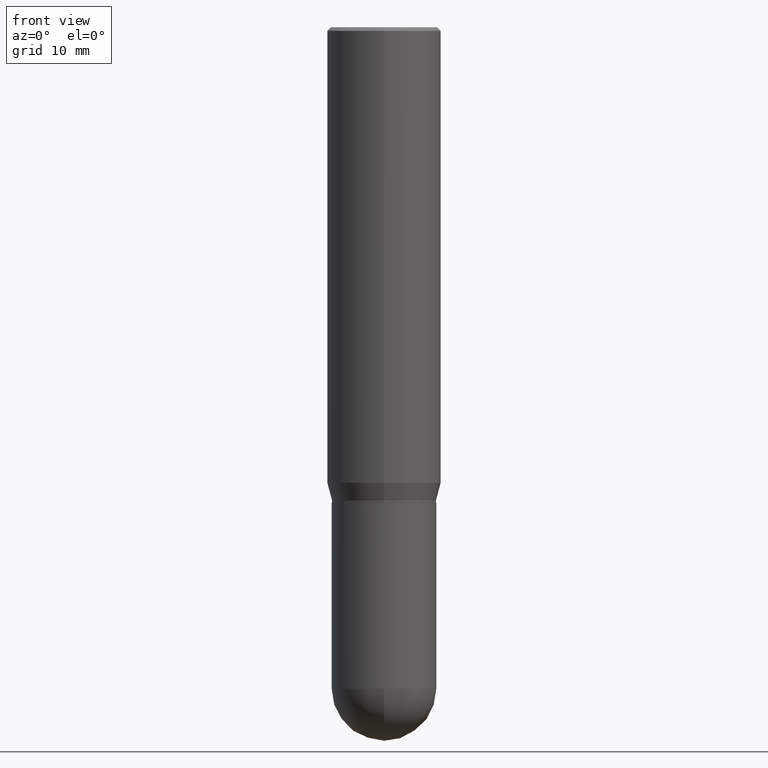
[diagram: clean part render]
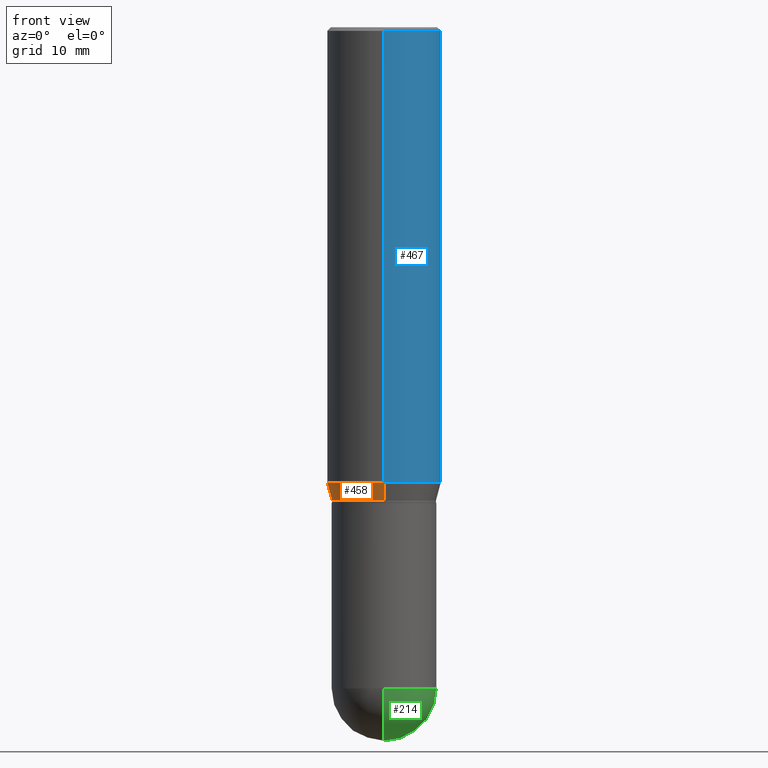
[diagram: same view with three faces highlighted in distinct colors, each labeled with its STEP entity id]
A machine part, front view with three faces highlighted in distinct colors.
Their STEP definitions:

[orange] entity #458 — the highlighted conical surface has half-angle 15 deg.
#1 = VERTEX_POINT ( 'NONE', #237 ) ;
#27 = CARTESIAN_POINT ( 'NONE',  ( 1.538680294288542061E-15, 0.2165499999999928316, -1.958500000000000796 ) ) ;
#37 = CIRCLE ( 'NONE', #310, 0.2361999999999999933 ) ;
#40 = CARTESIAN_POINT ( 'NONE',  ( -1.649375784469449785E-15, -0.2362000000000065436, -1.885165201631269660 ) ) ;
#59 = VECTOR ( 'NONE', #349, 39.37007874015748143 ) ;
#67 = AXIS2_PLACEMENT_3D ( 'NONE', #282, #146, #171 ) ;
#146 = DIRECTION ( 'NONE',  ( -2.445645617895871651E-29, 3.491228134409875712E-15, 1.000000000000000000 ) ) ;
#166 = CARTESIAN_POINT ( 'NONE',  ( -1.512160567852910730E-15, -0.2165500000000064873, -1.958499999999999019 ) ) ;
#171 = DIRECTION ( 'NONE',  ( -6.982962677686265922E-15, -1.000000000000000000, 3.784596620176773299E-15 ) ) ;
#191 = VECTOR ( 'NONE', #407, 39.37007874015748143 ) ;
#225 = EDGE_LOOP ( 'NONE', ( #268, #381, #342, #234 ) ) ;
#228 = VERTEX_POINT ( 'NONE', #329 ) ;
#234 = ORIENTED_EDGE ( 'NONE', *, *, #471, .F. ) ;
#236 = AXIS2_PLACEMENT_3D ( 'NONE', #380, #270, #272 ) ;
#237 = CARTESIAN_POINT ( 'NONE',  ( 1.678301941865402543E-15, 0.2361999999999934430, -1.885165201631271215 ) ) ;
#249 = LINE ( 'NONE', #27, #191 ) ;
#253 = EDGE_CURVE ( 'NONE', #228, #398, #402, .T. ) ;
#257 = CARTESIAN_POINT ( 'NONE',  ( -1.512160567852910730E-15, -0.2165500000000064873, -1.958499999999999019 ) ) ;
#268 = ORIENTED_EDGE ( 'NONE', *, *, #448, .F. ) ;
#270 = DIRECTION ( 'NONE',  ( -2.445645617895871651E-29, 3.491228134409875712E-15, 1.000000000000000000 ) ) ;
#272 = DIRECTION ( 'NONE',  ( -6.982962677686265922E-15, -1.000000000000000000, 3.784596620176773299E-15 ) ) ;
#281 = EDGE_CURVE ( 'NONE', #398, #408, #469, .T. ) ;
#282 = CARTESIAN_POINT ( 'NONE',  ( 4.789796942649064112E-29, -6.837570301241741551E-15, -1.958499999999999908 ) ) ;
#287 = FACE_OUTER_BOUND ( 'NONE', #225, .T. ) ;
#292 = CONICAL_SURFACE ( 'NONE', #67, 0.2165499999999996594, 0.2617993877991502405 ) ;
#310 = AXIS2_PLACEMENT_3D ( 'NONE', #482, #316, #440 ) ;
#316 = DIRECTION ( 'NONE',  ( -2.445645617895871651E-29, 3.491228134409875712E-15, 1.000000000000000000 ) ) ;
#329 = CARTESIAN_POINT ( 'NONE',  ( 1.608491118076972302E-15, 0.2165499999999928316, -1.958500000000000796 ) ) ;
#342 = ORIENTED_EDGE ( 'NONE', *, *, #281, .T. ) ;
#349 = DIRECTION ( 'NONE',  ( -1.807323732225329745E-15, -0.2588190451025181305, 0.9659258262890689783 ) ) ;
#380 = CARTESIAN_POINT ( 'NONE',  ( 4.789796942649064112E-29, -6.837570301241741551E-15, -1.958499999999999908 ) ) ;
#381 = ORIENTED_EDGE ( 'NONE', *, *, #253, .T. ) ;
#398 = VERTEX_POINT ( 'NONE', #257 ) ;
#402 = CIRCLE ( 'NONE', #236, 0.2165499999999996594 ) ;
#407 = DIRECTION ( 'NONE',  ( 1.839019923739599921E-15, 0.2588190451025249028, 0.9659258262890670910 ) ) ;
#408 = VERTEX_POINT ( 'NONE', #40 ) ;
#440 = DIRECTION ( 'NONE',  ( -6.982962677686265922E-15, -1.000000000000000000, 3.469747663417777397E-15 ) ) ;
#448 = EDGE_CURVE ( 'NONE', #228, #1, #249, .T. ) ;
#458 = ADVANCED_FACE ( 'NONE', ( #287 ), #292, .T. ) ;
#469 = LINE ( 'NONE', #166, #59 ) ;
#471 = EDGE_CURVE ( 'NONE', #1, #408, #37, .T. ) ;
#482 = CARTESIAN_POINT ( 'NONE',  ( 4.610446014379303463E-29, -6.581541789945557282E-15, -1.885165201631270548 ) ) ;

[blue] entity #467 — the highlighted cylindrical surface (partial cylindrical patch) has radius 5.9995 mm, axis along (-0, 0, 1).
#1 = VERTEX_POINT ( 'NONE', #237 ) ;
#2 = CARTESIAN_POINT ( 'NONE',  ( 3.668468426843755121E-31, -5.236842201614738281E-17, -0.01499999999999978434 ) ) ;
#22 = EDGE_CURVE ( 'NONE', #1, #56, #130, .T. ) ;
#36 = VERTEX_POINT ( 'NONE', #271 ) ;
#40 = CARTESIAN_POINT ( 'NONE',  ( -1.649375784469449785E-15, -0.2362000000000065436, -1.885165201631269660 ) ) ;
#41 = ORIENTED_EDGE ( 'NONE', *, *, #22, .T. ) ;
#48 = DIRECTION ( 'NONE',  ( -2.445645617895871651E-29, 3.491228134409875712E-15, 1.000000000000000000 ) ) ;
#51 = DIRECTION ( 'NONE',  ( -2.445645617895871651E-29, 3.491228134409875712E-15, 1.000000000000000000 ) ) ;
#56 = VERTEX_POINT ( 'NONE', #332 ) ;
#62 = ORIENTED_EDGE ( 'NONE', *, *, #250, .F. ) ;
#64 = CARTESIAN_POINT ( 'NONE',  ( 0.000000000000000000, 0.000000000000000000, 0.000000000000000000 ) ) ;
#86 = DIRECTION ( 'NONE',  ( -6.982962677686265922E-15, -1.000000000000000000, 3.487819265831411744E-15 ) ) ;
#93 = CARTESIAN_POINT ( 'NONE',  ( -1.649375784469495934E-15, -0.2361999999999999933, 8.246280853476126431E-16 ) ) ;
#96 = CARTESIAN_POINT ( 'NONE',  ( 1.678301941865356394E-15, 0.2361999999999999933, -8.246280853476126431E-16 ) ) ;
#110 = AXIS2_PLACEMENT_3D ( 'NONE', #2, #200, #86 ) ;
#125 = LINE ( 'NONE', #93, #273 ) ;
#130 = LINE ( 'NONE', #96, #426 ) ;
#175 = ORIENTED_EDGE ( 'NONE', *, *, #371, .T. ) ;
#200 = DIRECTION ( 'NONE',  ( -2.445645617895871651E-29, 3.491228134409875712E-15, 1.000000000000000000 ) ) ;
#219 = CIRCLE ( 'NONE', #110, 0.2361999999999999933 ) ;
#235 = CARTESIAN_POINT ( 'NONE',  ( 4.610446014379303463E-29, -6.581541789945557282E-15, -1.885165201631270548 ) ) ;
#237 = CARTESIAN_POINT ( 'NONE',  ( 1.678301941865402543E-15, 0.2361999999999934430, -1.885165201631271215 ) ) ;
#239 = EDGE_CURVE ( 'NONE', #36, #56, #219, .T. ) ;
#250 = EDGE_CURVE ( 'NONE', #408, #36, #125, .T. ) ;
#267 = DIRECTION ( 'NONE',  ( -2.445645617895871651E-29, 3.491228134409875712E-15, 1.000000000000000000 ) ) ;
#271 = CARTESIAN_POINT ( 'NONE',  ( -1.649375784469495539E-15, -0.2362000000000000766, -0.01499999999999896035 ) ) ;
#273 = VECTOR ( 'NONE', #267, 39.37007874015748143 ) ;
#276 = DIRECTION ( 'NONE',  ( -2.445645617895871651E-29, 3.491228134409875712E-15, 1.000000000000000000 ) ) ;
#280 = ORIENTED_EDGE ( 'NONE', *, *, #239, .F. ) ;
#324 = CYLINDRICAL_SURFACE ( 'NONE', #510, 0.2361999999999999933 ) ;
#332 = CARTESIAN_POINT ( 'NONE',  ( 1.678301941865403134E-15, 0.2361999999999999655, -0.01500000000000060833 ) ) ;
#345 = AXIS2_PLACEMENT_3D ( 'NONE', #235, #51, #428 ) ;
#371 = EDGE_CURVE ( 'NONE', #408, #1, #473, .T. ) ;
#401 = DIRECTION ( 'NONE',  ( -6.982962677686265922E-15, -1.000000000000000000, 3.491228134409875712E-15 ) ) ;
#408 = VERTEX_POINT ( 'NONE', #40 ) ;
#426 = VECTOR ( 'NONE', #48, 39.37007874015748143 ) ;
#428 = DIRECTION ( 'NONE',  ( -6.982962677686265922E-15, -1.000000000000000000, 3.469747663417777397E-15 ) ) ;
#467 = ADVANCED_FACE ( 'NONE', ( #485 ), #324, .T. ) ;
#473 = CIRCLE ( 'NONE', #345, 0.2361999999999999933 ) ;
#485 = FACE_OUTER_BOUND ( 'NONE', #499, .T. ) ;
#499 = EDGE_LOOP ( 'NONE', ( #175, #41, #280, #62 ) ) ;
#510 = AXIS2_PLACEMENT_3D ( 'NONE', #64, #276, #401 ) ;

[green] entity #214 — the highlighted spherical surface has radius 5.5004 mm.
#13 = EDGE_CURVE ( 'NONE', #58, #405, #32, .T. ) ;
#14 = CARTESIAN_POINT ( 'NONE',  ( 0.2165500000000000480, -9.725433982314102974E-15, -2.736249999999999183 ) ) ;
#28 = CARTESIAN_POINT ( 'NONE',  ( 6.672895394931898871E-29, -9.580085539845092024E-15, -2.736249999999999627 ) ) ;
#30 = CARTESIAN_POINT ( 'NONE',  ( -1.538680294288430240E-15, -0.2165500000000096792, -2.736249999999998295 ) ) ;
#32 = CIRCLE ( 'NONE', #76, 0.2165500000000000480 ) ;
#45 = DIRECTION ( 'NONE',  ( -1.000000000000000000, 7.105427357601001070E-15, -4.926315508542082329E-29 ) ) ;
#54 = DIRECTION ( 'NONE',  ( 1.000000000000000000, -6.982962677686263555E-15, 0.000000000000000000 ) ) ;
#58 = VERTEX_POINT ( 'NONE', #30 ) ;
#76 = AXIS2_PLACEMENT_3D ( 'NONE', #277, #442, #54 ) ;
#81 = DIRECTION ( 'NONE',  ( -7.105427357601001070E-15, -1.000000000000000000, 0.000000000000000000 ) ) ;
#105 = VERTEX_POINT ( 'NONE', #210 ) ;
#119 = AXIS2_PLACEMENT_3D ( 'NONE', #195, #45, #81 ) ;
#124 = ORIENTED_EDGE ( 'NONE', *, *, #396, .F. ) ;
#137 = EDGE_CURVE ( 'NONE', #432, #105, #258, .T. ) ;
#142 = CIRCLE ( 'NONE', #196, 0.2165500000000000480 ) ;
#144 = DIRECTION ( 'NONE',  ( 1.000000000000000000, -6.982962677686263555E-15, 0.000000000000000000 ) ) ;
#195 = CARTESIAN_POINT ( 'NONE',  ( 6.672895394931898871E-29, -9.580085539845092024E-15, -2.736249999999999627 ) ) ;
#196 = AXIS2_PLACEMENT_3D ( 'NONE', #309, #443, #144 ) ;
#208 = EDGE_LOOP ( 'NONE', ( #124, #217, #490, #462 ) ) ;
#210 = CARTESIAN_POINT ( 'NONE',  ( 1.512160567853028073E-15, 0.2165499999999904723, -2.736249999999999627 ) ) ;
#214 = ADVANCED_FACE ( 'NONE', ( #323 ), #251, .T. ) ;
#217 = ORIENTED_EDGE ( 'NONE', *, *, #137, .T. ) ;
#251 = SPHERICAL_SURFACE ( 'NONE', #266, 0.2165500000000001035 ) ;
#258 = CIRCLE ( 'NONE', #388, 0.2165500000000001035 ) ;
#266 = AXIS2_PLACEMENT_3D ( 'NONE', #412, #286, #451 ) ;
#277 = CARTESIAN_POINT ( 'NONE',  ( 6.691414020924076964E-29, -9.553565813409554172E-15, -2.736249999999999183 ) ) ;
#286 = DIRECTION ( 'NONE',  ( -1.000000000000000000, 6.982962677686265922E-15, -4.883557194083112340E-29 ) ) ;
#289 = DIRECTION ( 'NONE',  ( 6.982962677686265922E-15, 1.000000000000000000, 0.000000000000000000 ) ) ;
#309 = CARTESIAN_POINT ( 'NONE',  ( 6.691414020924076964E-29, -9.553565813409554172E-15, -2.736249999999999183 ) ) ;
#323 = FACE_OUTER_BOUND ( 'NONE', #208, .T. ) ;
#388 = AXIS2_PLACEMENT_3D ( 'NONE', #28, #418, #289 ) ;
#391 = CARTESIAN_POINT ( 'NONE',  ( 7.211720977907380015E-29, -1.032290596055380666E-14, -2.952799999999999869 ) ) ;
#396 = EDGE_CURVE ( 'NONE', #432, #58, #446, .T. ) ;
#405 = VERTEX_POINT ( 'NONE', #14 ) ;
#412 = CARTESIAN_POINT ( 'NONE',  ( 6.672895394931898871E-29, -9.580085539845092024E-15, -2.736249999999999627 ) ) ;
#418 = DIRECTION ( 'NONE',  ( 1.000000000000000000, -6.982962677686265922E-15, 4.883557194083112340E-29 ) ) ;
#432 = VERTEX_POINT ( 'NONE', #391 ) ;
#441 = EDGE_CURVE ( 'NONE', #405, #105, #142, .T. ) ;
#442 = DIRECTION ( 'NONE',  ( -2.445468806185136597E-29, 3.491481338843145583E-15, 1.000000000000000000 ) ) ;
#443 = DIRECTION ( 'NONE',  ( -2.445468806185136597E-29, 3.491481338843145583E-15, 1.000000000000000000 ) ) ;
#446 = CIRCLE ( 'NONE', #119, 0.2165500000000001035 ) ;
#451 = DIRECTION ( 'NONE',  ( 6.982962677686265922E-15, 1.000000000000000000, -2.523064413451176940E-15 ) ) ;
#462 = ORIENTED_EDGE ( 'NONE', *, *, #13, .F. ) ;
#490 = ORIENTED_EDGE ( 'NONE', *, *, #441, .F. ) ;